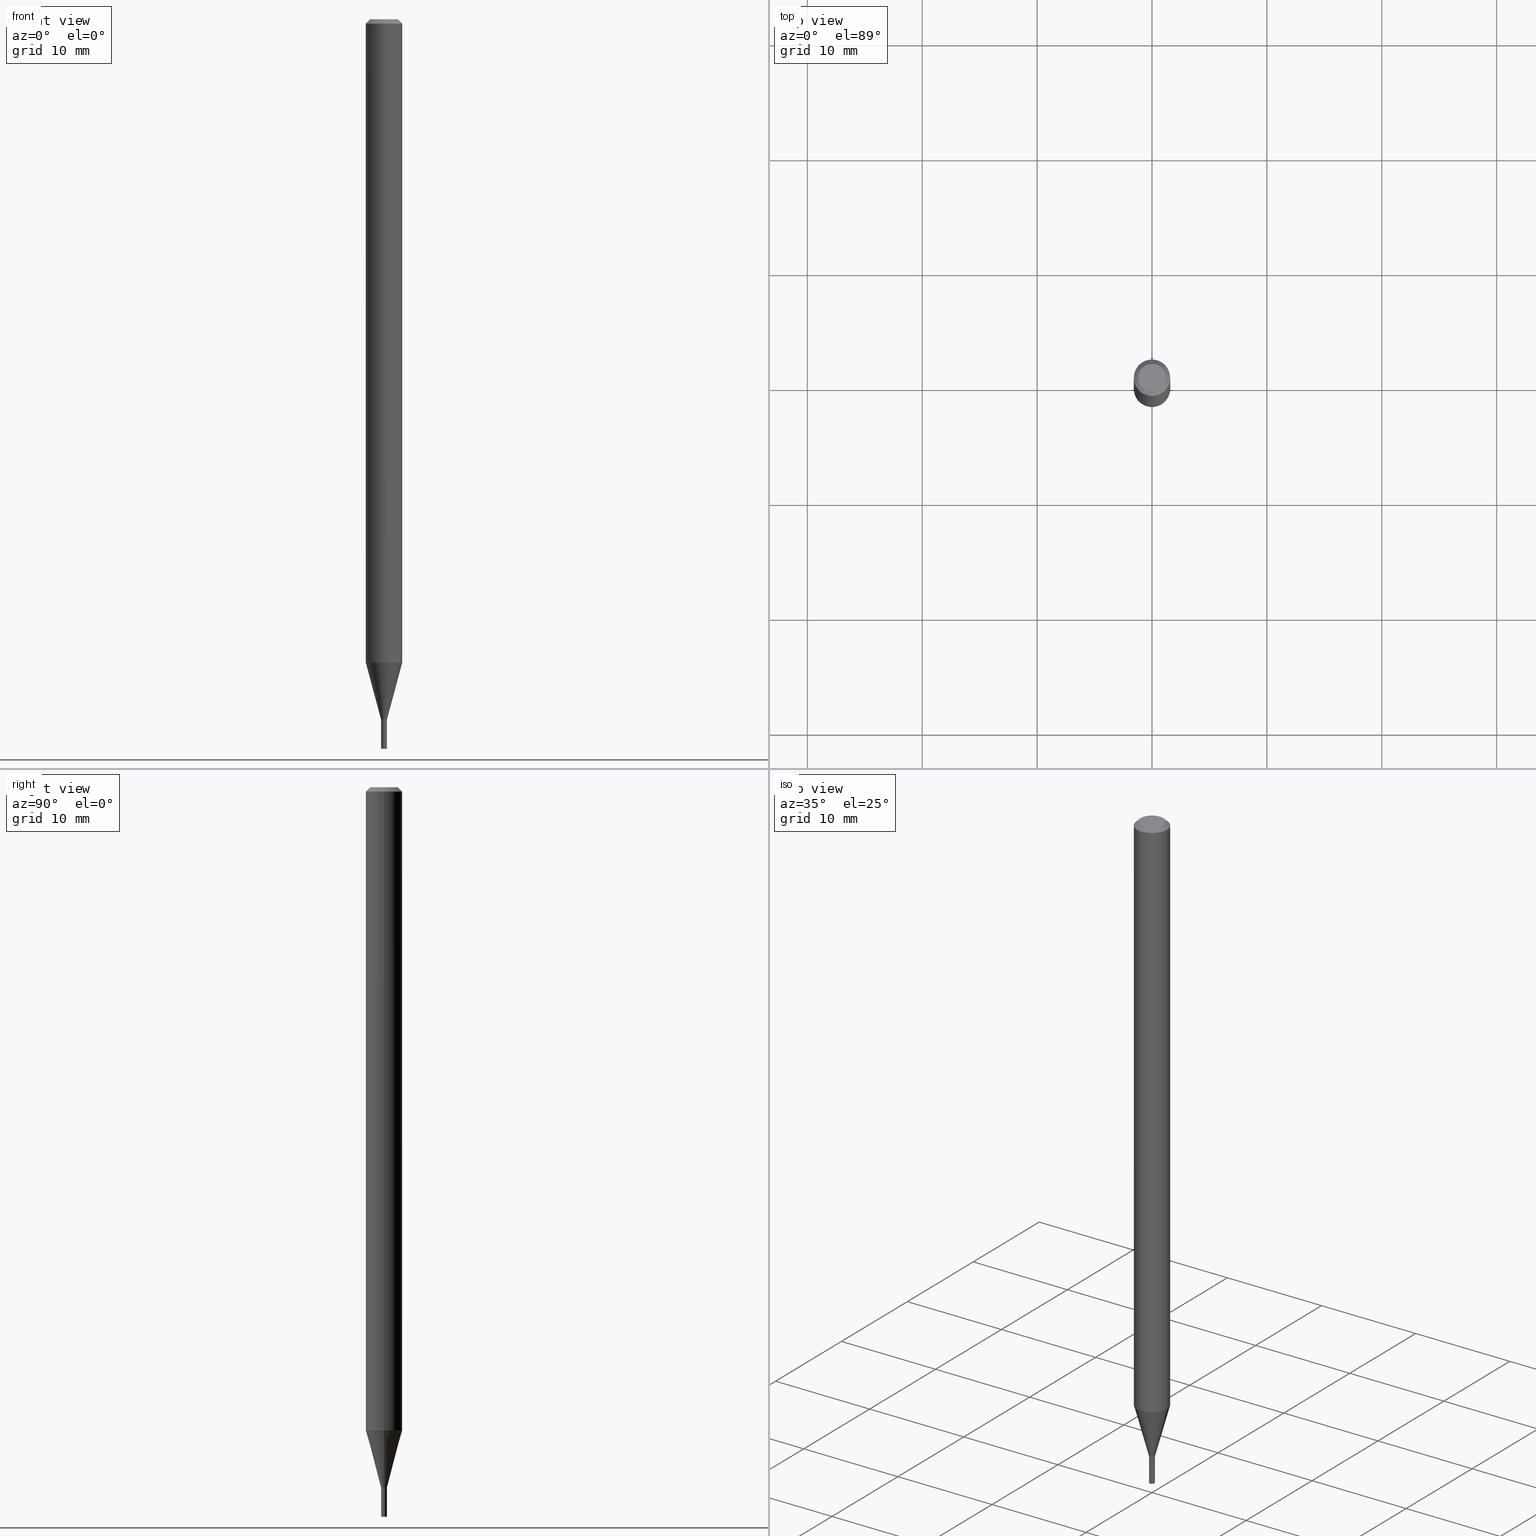
[diagram: canonical four-view strip — front | top / right | iso, engineering-drawing reading convention]
A machine part, canonical four-view strip (front | top / right | iso — engineering-drawing reading convention). The complete STEP part file that produces these views, byte-faithful:
ISO-10303-21;
HEADER;
FILE_DESCRIPTION (( 'STEP AP203' ),
    '1' );
FILE_NAME ('01229.STEP',
    '2024-03-20T00:17:53',
    ( '' ),
    ( '' ),
    'SwSTEP 2.0',
    'SolidWorks 2023',
    '' );
FILE_SCHEMA (( 'CONFIG_CONTROL_DESIGN' ));
ENDSEC;

DATA;
#1 = PRODUCT_RELATED_PRODUCT_CATEGORY ( 'detail', '', ( #329 ) ) ;
#2 = FACE_OUTER_BOUND ( 'NONE', #5, .T. ) ;
#3 = PLANE ( 'NONE',  #413 ) ;
#4 = DATE_AND_TIME ( #290, #226 ) ;
#5 = EDGE_LOOP ( 'NONE', ( #154, #197, #342, #156 ) ) ;
#6 = CARTESIAN_POINT ( 'NONE',  ( 0.000000000000000000, 0.000000000000000000, 0.000000000000000000 ) ) ;
#7 = DIRECTION ( 'NONE',  ( -2.445468806185136597E-29, 3.491481338843145583E-15, 1.000000000000000000 ) ) ;
#8 = AXIS2_PLACEMENT_3D ( 'NONE', #388, #349, #27 ) ;
#9 = PERSON_AND_ORGANIZATION ( #163, #17 ) ;
#10 = VECTOR ( 'NONE', #393, 39.37007874015748143 ) ;
#11 = ORIENTED_EDGE ( 'NONE', *, *, #153, .F. ) ;
#12 = EDGE_CURVE ( 'NONE', #301, #316, #242, .T. ) ;
#13 = DIRECTION ( 'NONE',  ( 1.000000000000000000, 0.000000000000000000, 0.000000000000000000 ) ) ;
#14 = EDGE_LOOP ( 'NONE', ( #451, #278, #128, #56 ) ) ;
#15 = LINE ( 'NONE', #270, #108 ) ;
#16 = ORIENTED_EDGE ( 'NONE', *, *, #279, .F. ) ;
#17 = ORGANIZATION ( 'UNSPECIFIED', 'UNSPECIFIED', '' ) ;
#18 = EDGE_CURVE ( 'NONE', #19, #189, #126, .T. ) ;
#19 = VERTEX_POINT ( 'NONE', #200 ) ;
#20 = DIRECTION ( 'NONE',  ( 1.000000000000000000, -6.982962677686267499E-15, 4.852736867747366768E-29 ) ) ;
#21 = SHAPE_DEFINITION_REPRESENTATION ( #24, #315 ) ;
#22 = CIRCLE ( 'NONE', #217, 0.01000000000000019623 ) ;
#23 = VECTOR ( 'NONE', #136, 39.37007874015748143 ) ;
#24 = PRODUCT_DEFINITION_SHAPE ( 'NONE', 'NONE',  #415 ) ;
#25 = DIRECTION ( 'NONE',  ( 1.000000000000000000, -6.982962677686235945E-15, 0.000000000000000000 ) ) ;
#26 = ORIENTED_EDGE ( 'NONE', *, *, #330, .F. ) ;
#27 = DIRECTION ( 'NONE',  ( -1.000000000000000000, 6.982962677686266711E-15, 0.000000000000000000 ) ) ;
#28 = EDGE_CURVE ( 'NONE', #234, #347, #15, .T. ) ;
#29 = DIRECTION ( 'NONE',  ( 0.2588190451025214611, 1.565188264969621573E-15, 0.9659258262890682012 ) ) ;
#30 = DATE_TIME_ROLE ( 'creation_date' ) ;
#31 = VERTEX_POINT ( 'NONE', #202 ) ;
#32 = LOCAL_TIME ( 20, 17, 53.00000000000000000, #233 ) ;
#33 = CARTESIAN_POINT ( 'NONE',  ( 0.01000000000000000021, -8.798532973884726663E-15, -2.500000000000000000 ) ) ;
#34 = EDGE_CURVE ( 'NONE', #301, #158, #51, .T. ) ;
#35 = APPROVAL ( #378, 'UNSPECIFIED' ) ;
#36 = DIRECTION ( 'NONE',  ( -2.445468806185136597E-29, 3.491481338843145583E-15, 1.000000000000000000 ) ) ;
#37 = CARTESIAN_POINT ( 'NONE',  ( 5.869125134844328281E-29, -8.379555213223550029E-15, -2.399999999999999911 ) ) ;
#38 = PLANE ( 'NONE',  #427 ) ;
#39 = AXIS2_PLACEMENT_3D ( 'NONE', #143, #285, #354 ) ;
#40 = CARTESIAN_POINT ( 'NONE',  ( 0.06250000000000000000, -8.131895128691275373E-15, -2.204067332602633211 ) ) ;
#41 = EDGE_LOOP ( 'NONE', ( #411, #368, #216, #104 ) ) ;
#42 = ORIENTED_EDGE ( 'NONE', *, *, #289, .T. ) ;
#43 = ADVANCED_FACE ( 'NONE', ( #374 ), #94, .F. ) ;
#44 = AXIS2_PLACEMENT_3D ( 'NONE', #366, #443, #373 ) ;
#45 = CARTESIAN_POINT ( 'NONE',  ( 5.867902400441235479E-29, -8.377809472554129315E-15, -2.399500000000000188 ) ) ;
#46 = CARTESIAN_POINT ( 'NONE',  ( -0.009499999999999999764, -8.312053653326340057E-15, -2.399999999999999911 ) ) ;
#47 = ORIENTED_EDGE ( 'NONE', *, *, #391, .F. ) ;
#48 = DIRECTION ( 'NONE',  ( 1.000000000000000000, -6.982962677686292743E-15, 0.000000000000000000 ) ) ;
#49 = ORIENTED_EDGE ( 'NONE', *, *, #80, .T. ) ;
#50 = DIRECTION ( 'NONE',  ( -2.445468806185136597E-29, 3.491481338843145583E-15, 1.000000000000000000 ) ) ;
#51 = CIRCLE ( 'NONE', #198, 0.009499999999999999764 ) ;
#52 = VECTOR ( 'NONE', #29, 39.37007874015747433 ) ;
#53 = CC_DESIGN_DATE_AND_TIME_ASSIGNMENT ( #334, #151, ( #177 ) ) ;
#54 = CARTESIAN_POINT ( 'NONE',  ( 0.000000000000000000, 0.000000000000000000, 0.000000000000000000 ) ) ;
#55 = APPROVAL_DATE_TIME ( #90, #296 ) ;
#56 = ORIENTED_EDGE ( 'NONE', *, *, #369, .F. ) ;
#57 = CARTESIAN_POINT ( 'NONE',  ( 0.01000000000000019623, -8.447639099330992613E-15, -2.399500000000000188 ) ) ;
#58 = ADVANCED_FACE ( 'NONE', ( #147 ), #118, .T. ) ;
#59 = AXIS2_PLACEMENT_3D ( 'NONE', #37, #405, #187 ) ;
#60 = CIRCLE ( 'NONE', #141, 0.01000000000000000021 ) ;
#61 = DIRECTION ( 'NONE',  ( 1.000000000000000000, -6.982962677686265922E-15, 4.876176775795935793E-29 ) ) ;
#62 = CARTESIAN_POINT ( 'NONE',  ( 5.869125134844328281E-29, -8.379555213223550029E-15, -2.399999999999999911 ) ) ;
#63 = DIRECTION ( 'NONE',  ( -2.445468806185136597E-29, 3.491481338843145583E-15, 1.000000000000000000 ) ) ;
#64 = CARTESIAN_POINT ( 'NONE',  ( 5.869125134844328281E-29, -8.379555213223550029E-15, -2.399999999999999911 ) ) ;
#65 = ORIENTED_EDGE ( 'NONE', *, *, #74, .F. ) ;
#66 = LINE ( 'NONE', #426, #23 ) ;
#67 = DIRECTION ( 'NONE',  ( 1.000000000000000000, -6.982962677686281699E-15, 0.000000000000000000 ) ) ;
#68 = ORIENTED_EDGE ( 'NONE', *, *, #293, .F. ) ;
#69 = DIRECTION ( 'NONE',  ( -0.2588190451025214611, 5.211531920934551042E-15, 0.9659258262890682012 ) ) ;
#70 = VECTOR ( 'NONE', #379, 39.37007874015748143 ) ;
#71 = CONICAL_SURFACE ( 'NONE', #185, 0.009999999999999649794, 0.2617993877991501295 ) ;
#72 = CC_DESIGN_PERSON_AND_ORGANIZATION_ASSIGNMENT ( #157, #306, ( #329 ) ) ;
#73 = CARTESIAN_POINT ( 'NONE',  ( 0.000000000000000000, 0.000000000000000000, 0.000000000000000000 ) ) ;
#74 = EDGE_CURVE ( 'NONE', #134, #31, #105, .T. ) ;
#75 = DIRECTION ( 'NONE',  ( -1.000000000000000000, 6.982962677686265922E-15, -4.876176775795935793E-29 ) ) ;
#76 = ADVANCED_FACE ( 'NONE', ( #356 ), #243, .T. ) ;
#77 = CLOSED_SHELL ( 'NONE', ( #317, #380, #164, #112 ) ) ;
#78 = CIRCLE ( 'NONE', #166, 0.06250000000000000000 ) ;
#79 = CARTESIAN_POINT ( 'NONE',  ( 0.04749999999999999362, -4.035134999187561860E-16, 9.466017379673015986E-16 ) ) ;
#80 = EDGE_CURVE ( 'NONE', #394, #365, #325, .T. ) ;
#81 = PERSON_AND_ORGANIZATION_ROLE ( 'classification_officer' ) ;
#82 = ADVANCED_FACE ( 'NONE', ( #218 ), #159, .T. ) ;
#83 = EDGE_LOOP ( 'NONE', ( #145, #444 ) ) ;
#84 = DIRECTION ( 'NONE',  ( 1.000000000000000000, -6.982962677686281699E-15, 0.000000000000000000 ) ) ;
#85 = CIRCLE ( 'NONE', #250, 0.01000000000000000021 ) ;
#86 = AXIS2_PLACEMENT_3D ( 'NONE', #73, #465, #144 ) ;
#87 = CYLINDRICAL_SURFACE ( 'NONE', #324, 0.06250000000000000000 ) ;
#88 = EDGE_CURVE ( 'NONE', #394, #316, #150, .T. ) ;
#89 = APPROVAL_ROLE ( '' ) ;
#90 = DATE_AND_TIME ( #375, #428 ) ;
#91 = PERSON_AND_ORGANIZATION ( #163, #17 ) ;
#92 = AXIS2_PLACEMENT_3D ( 'NONE', #274, #123, #464 ) ;
#93 = ORIENTED_EDGE ( 'NONE', *, *, #293, .T. ) ;
#94 = CYLINDRICAL_SURFACE ( 'NONE', #322, 0.009999999999999923880 ) ;
#95 = ORIENTED_EDGE ( 'NONE', *, *, #454, .F. ) ;
#96 = DIRECTION ( 'NONE',  ( 1.000000000000000000, -6.982962677686265922E-15, 4.876176775795935232E-29 ) ) ;
#97 = FACE_OUTER_BOUND ( 'NONE', #376, .T. ) ;
#98 = VERTEX_POINT ( 'NONE', #40 ) ;
#99 = DIRECTION ( 'NONE',  ( 0.7071067811865252573, -7.319954787623181892E-15, -0.7071067811865697772 ) ) ;
#100 = CARTESIAN_POINT ( 'NONE',  ( -0.06250000000000000000, 4.440892098500626162E-16, -3.074334431409316114E-30 ) ) ;
#101 = CARTESIAN_POINT ( 'NONE',  ( -0.01000000000000000021, -8.483075006589696615E-15, -2.500000000000000000 ) ) ;
#102 =( LENGTH_UNIT ( ) NAMED_UNIT ( * ) SI_UNIT ( $, .METRE. ) );
#103 = DIRECTION ( 'NONE',  ( -2.445468806185136597E-29, 3.491481338843145583E-15, 1.000000000000000000 ) ) ;
#104 = ORIENTED_EDGE ( 'NONE', *, *, #28, .F. ) ;
#105 = LINE ( 'NONE', #457, #313 ) ;
#106 = CC_DESIGN_DATE_AND_TIME_ASSIGNMENT ( #4, #30, ( #415 ) ) ;
#107 = COORDINATED_UNIVERSAL_TIME_OFFSET ( 5, 0, .BEHIND. ) ;
#108 = VECTOR ( 'NONE', #298, 39.37007874015748143 ) ;
#109 = APPROVAL_PERSON_ORGANIZATION ( #429, #458, #327 ) ;
#110 = PLANE ( 'NONE',  #363 ) ;
#111 = DIRECTION ( 'NONE',  ( -1.000000000000000000, 6.982962677686266711E-15, 0.000000000000000000 ) ) ;
#112 = ADVANCED_FACE ( 'NONE', ( #152 ), #3, .F. ) ;
#113 = APPLICATION_PROTOCOL_DEFINITION ( 'international standard', 'config_control_design', 1994, #230 ) ;
#114 = DIRECTION ( 'NONE',  ( 2.445468806185136597E-29, -3.491481338843145583E-15, -1.000000000000000000 ) ) ;
#115 = CARTESIAN_POINT ( 'NONE',  ( -2.314885022079666495E-44, 3.305042303429313746E-30, 9.466017379672990348E-16 ) ) ;
#116 = DIRECTION ( 'NONE',  ( -2.445468806185136597E-29, 3.491481338843145583E-15, 1.000000000000000000 ) ) ;
#117 = DIRECTION ( 'NONE',  ( -2.445468806185136597E-29, 3.491481338843145583E-15, 1.000000000000000000 ) ) ;
#118 = CONICAL_SURFACE ( 'NONE', #8, 0.06250000000000000000, 0.7853981633974168597 ) ;
#119 = CARTESIAN_POINT ( 'NONE',  ( 3.668203209277705088E-31, -5.237222008264718399E-17, -0.01499999999999999944 ) ) ;
#120 = ORIENTED_EDGE ( 'NONE', *, *, #18, .F. ) ;
#121 = CC_DESIGN_PERSON_AND_ORGANIZATION_ASSIGNMENT ( #9, #81, ( #177 ) ) ;
#122 = CALENDAR_DATE ( 2024, 19, 3 ) ;
#123 = DIRECTION ( 'NONE',  ( -2.445468806185136597E-29, 3.491481338843145583E-15, 1.000000000000000000 ) ) ;
#124 = AXIS2_PLACEMENT_3D ( 'NONE', #194, #303, #417 ) ;
#125 = CIRCLE ( 'NONE', #199, 0.01000000000000000021 ) ;
#126 = LINE ( 'NONE', #240, #70 ) ;
#127 = VERTEX_POINT ( 'NONE', #358 ) ;
#128 = ORIENTED_EDGE ( 'NONE', *, *, #155, .F. ) ;
#129 = DIRECTION ( 'NONE',  ( -2.445468806185136597E-29, 3.491481338843145583E-15, 1.000000000000000000 ) ) ;
#130 = APPLICATION_PROTOCOL_DEFINITION ( 'international standard', 'config_control_design', 1994, #351 ) ;
#131 = DIRECTION ( 'NONE',  ( 1.000000000000000000, -6.982962677686266711E-15, 0.000000000000000000 ) ) ;
#132 = DIRECTION ( 'NONE',  ( -2.445468806185136597E-29, 3.491481338843145583E-15, 1.000000000000000000 ) ) ;
#133 = DIRECTION ( 'NONE',  ( -2.445468806185136597E-29, 3.491481338843145583E-15, 1.000000000000000000 ) ) ;
#134 = VERTEX_POINT ( 'NONE', #79 ) ;
#135 = EDGE_CURVE ( 'NONE', #394, #19, #176, .T. ) ;
#136 = DIRECTION ( 'NONE',  ( -2.445468806185136877E-29, 3.491481338843145188E-15, 1.000000000000000000 ) ) ;
#137 = EDGE_LOOP ( 'NONE', ( #424, #367, #462, #384 ) ) ;
#138 = LINE ( 'NONE', #397, #52 ) ;
#139 = ORIENTED_EDGE ( 'NONE', *, *, #220, .F. ) ;
#140 = CLOSED_SHELL ( 'NONE', ( #43, #402, #82, #435, #466, #76, #209, #58, #267, #229, #203, #434 ) ) ;
#141 = AXIS2_PLACEMENT_3D ( 'NONE', #62, #257, #25 ) ;
#142 =( CONVERSION_BASED_UNIT ( 'INCH', #178 ) LENGTH_UNIT ( ) NAMED_UNIT ( #168 ) );
#143 = CARTESIAN_POINT ( 'NONE',  ( 5.869125134844327160E-29, -8.379555213223548452E-15, -2.399999999999999911 ) ) ;
#144 = DIRECTION ( 'NONE',  ( 1.000000000000000000, -6.982962677686265922E-15, 4.876176775795935793E-29 ) ) ;
#145 = ORIENTED_EDGE ( 'NONE', *, *, #391, .T. ) ;
#146 = EDGE_CURVE ( 'NONE', #408, #308, #260, .T. ) ;
#147 = FACE_OUTER_BOUND ( 'NONE', #339, .T. ) ;
#148 = CARTESIAN_POINT ( 'NONE',  ( -0.01000000000000000021, 7.105427357601002007E-17, -4.918935090254906272E-31 ) ) ;
#149 = PERSON_AND_ORGANIZATION ( #163, #17 ) ;
#150 = LINE ( 'NONE', #441, #165 ) ;
#151 = DATE_TIME_ROLE ( 'classification_date' ) ;
#152 = FACE_OUTER_BOUND ( 'NONE', #83, .T. ) ;
#153 = EDGE_CURVE ( 'NONE', #189, #316, #22, .T. ) ;
#154 = ORIENTED_EDGE ( 'NONE', *, *, #12, .F. ) ;
#155 = EDGE_CURVE ( 'NONE', #31, #347, #207, .T. ) ;
#156 = ORIENTED_EDGE ( 'NONE', *, *, #171, .F. ) ;
#157 = PERSON_AND_ORGANIZATION ( #163, #17 ) ;
#158 = VERTEX_POINT ( 'NONE', #340 ) ;
#159 = CONICAL_SURFACE ( 'NONE', #275, 0.06250000000000000000, 0.7853981633974168597 ) ;
#160 = APPROVAL_PERSON_ORGANIZATION ( #91, #296, #272 ) ;
#161 = DIRECTION ( 'NONE',  ( -2.445468806185136597E-29, 3.491481338843145583E-15, 1.000000000000000000 ) ) ;
#162 = DIRECTION ( 'NONE',  ( 0.000000000000000000, 0.000000000000000000, 1.000000000000000000 ) ) ;
#163 = PERSON ( 'UNSPECIFIED', 'UNSPECIFIED', 'UNSPECIFIED', ('UNSPECIFIED'), ('UNSPECIFIED'), ('UNSPECIFIED') ) ;
#164 = ADVANCED_FACE ( 'NONE', ( #445 ), #304, .T. ) ;
#165 = VECTOR ( 'NONE', #401, 39.37007874015748143 ) ;
#166 = AXIS2_PLACEMENT_3D ( 'NONE', #119, #232, #131 ) ;
#167 = ORIENTED_EDGE ( 'NONE', *, *, #221, .T. ) ;
#168 = DIMENSIONAL_EXPONENTS ( 1.000000000000000000, 0.000000000000000000, 0.000000000000000000, 0.000000000000000000, 0.000000000000000000, 0.000000000000000000, 0.000000000000000000 ) ;
#169 = DIRECTION ( 'NONE',  ( 1.000000000000000000, -6.982962677686281699E-15, 0.000000000000000000 ) ) ;
#170 = CARTESIAN_POINT ( 'NONE',  ( -0.06250000000000000000, -7.251370751485821088E-15, -2.204067332602633211 ) ) ;
#171 = EDGE_CURVE ( 'NONE', #316, #189, #299, .T. ) ;
#172 = ORIENTED_EDGE ( 'NONE', *, *, #345, .F. ) ;
#173 = DIRECTION ( 'NONE',  ( 1.000000000000000000, -6.982962677686235945E-15, 0.000000000000000000 ) ) ;
#174 = EDGE_CURVE ( 'NONE', #158, #189, #211, .T. ) ;
#175 = ORIENTED_EDGE ( 'NONE', *, *, #28, .T. ) ;
#176 = CIRCLE ( 'NONE', #59, 0.009999999999999649794 ) ;
#177 = SECURITY_CLASSIFICATION ( '', '', #248 ) ;
#178 = LENGTH_MEASURE_WITH_UNIT ( LENGTH_MEASURE( 0.02539999999999999897 ), #102 );
#179 = CARTESIAN_POINT ( 'NONE',  ( 0.01000000000000000021, -8.449384840000411750E-15, -2.399999999999999911 ) ) ;
#180 = PERSON_AND_ORGANIZATION_ROLE ( 'creator' ) ;
#181 = CARTESIAN_POINT ( 'NONE',  ( -0.009499999999999999764, -8.309404426152228067E-15, -2.399999999999999911 ) ) ;
#182 = CARTESIAN_POINT ( 'NONE',  ( 3.668203209277705088E-31, -5.237222008264718399E-17, -0.01499999999999999944 ) ) ;
#183 = DIRECTION ( 'NONE',  ( 1.000000000000000000, -6.982962677686285643E-15, 0.000000000000000000 ) ) ;
#184 = UNCERTAINTY_MEASURE_WITH_UNIT (LENGTH_MEASURE( 1.000000000000000082E-05 ), #142, 'distance_accuracy_value', 'NONE');
#185 = AXIS2_PLACEMENT_3D ( 'NONE', #210, #459, #183 ) ;
#186 = DIRECTION ( 'NONE',  ( 2.438088387897960049E-29, -3.491481338843145188E-15, -1.000000000000000000 ) ) ;
#187 = DIRECTION ( 'NONE',  ( 1.000000000000000000, -6.982962677686285643E-15, 0.000000000000000000 ) ) ;
#188 = EDGE_LOOP ( 'NONE', ( #271, #455 ) ) ;
#189 = VERTEX_POINT ( 'NONE', #57 ) ;
#190 = CARTESIAN_POINT ( 'NONE',  ( 5.389977908611419802E-29, -7.695459961335882126E-15, -2.204067332602633211 ) ) ;
#191 = EDGE_LOOP ( 'NONE', ( #352, #195, #318, #312 ) ) ;
#192 = CIRCLE ( 'NONE', #291, 0.06250000000000000000 ) ;
#193 = ORIENTED_EDGE ( 'NONE', *, *, #80, .F. ) ;
#194 = CARTESIAN_POINT ( 'NONE',  ( 3.668203209277705088E-31, -5.237222008264718399E-17, -0.01499999999999999944 ) ) ;
#195 = ORIENTED_EDGE ( 'NONE', *, *, #220, .T. ) ;
#196 = DIRECTION ( 'NONE',  ( -2.445468806185136597E-29, 3.491481338843145583E-15, 1.000000000000000000 ) ) ;
#197 = ORIENTED_EDGE ( 'NONE', *, *, #34, .T. ) ;
#198 = AXIS2_PLACEMENT_3D ( 'NONE', #344, #423, #84 ) ;
#199 = AXIS2_PLACEMENT_3D ( 'NONE', #64, #212, #173 ) ;
#200 = CARTESIAN_POINT ( 'NONE',  ( 0.009999999999999649794, -8.449384840000410172E-15, -2.399999999999999911 ) ) ;
#201 = ORIENTED_EDGE ( 'NONE', *, *, #146, .F. ) ;
#202 = CARTESIAN_POINT ( 'NONE',  ( 0.06250000000000000000, -4.888073874380388472E-16, -0.01499999999999999944 ) ) ;
#203 = ADVANCED_FACE ( 'NONE', ( #2 ), #398, .T. ) ;
#204 = EDGE_LOOP ( 'NONE', ( #193, #409, #268, #139 ) ) ;
#205 = COORDINATED_UNIVERSAL_TIME_OFFSET ( 5, 0, .BEHIND. ) ;
#206 = CARTESIAN_POINT ( 'NONE',  ( 5.869125134844327160E-29, -8.379555213223548452E-15, -2.399999999999999911 ) ) ;
#207 = CIRCLE ( 'NONE', #124, 0.06250000000000000000 ) ;
#208 = DIRECTION ( 'NONE',  ( -2.445468806185136877E-29, 3.491481338843145188E-15, 1.000000000000000000 ) ) ;
#209 = ADVANCED_FACE ( 'NONE', ( #262 ), #294, .T. ) ;
#210 = CARTESIAN_POINT ( 'NONE',  ( 5.869125134844328281E-29, -8.379555213223550029E-15, -2.399999999999999911 ) ) ;
#211 = LINE ( 'NONE', #254, #10 ) ;
#212 = DIRECTION ( 'NONE',  ( -2.445468806185136597E-29, 3.491481338843145583E-15, 1.000000000000000000 ) ) ;
#213 = APPROVAL_STATUS ( 'not_yet_approved' ) ;
#214 = ORIENTED_EDGE ( 'NONE', *, *, #34, .F. ) ;
#215 = DIRECTION ( 'NONE',  ( -2.438088387897960049E-29, 3.491481338843145188E-15, 1.000000000000000000 ) ) ;
#216 = ORIENTED_EDGE ( 'NONE', *, *, #155, .T. ) ;
#217 = AXIS2_PLACEMENT_3D ( 'NONE', #45, #129, #48 ) ;
#218 = FACE_OUTER_BOUND ( 'NONE', #41, .T. ) ;
#219 = PERSON_AND_ORGANIZATION_ROLE ( 'design_supplier' ) ;
#220 = EDGE_CURVE ( 'NONE', #365, #98, #192, .T. ) ;
#221 = EDGE_CURVE ( 'NONE', #308, #408, #85, .T. ) ;
#222 = DIRECTION ( 'NONE',  ( -2.445468806185136597E-29, 3.491481338843145583E-15, 1.000000000000000000 ) ) ;
#223 = DIRECTION ( 'NONE',  ( 1.000000000000000000, -6.982962677686266711E-15, 4.876176775795935793E-29 ) ) ;
#224 = CALENDAR_DATE ( 2024, 19, 3 ) ;
#225 = CIRCLE ( 'NONE', #236, 0.04749999999999999362 ) ;
#226 = LOCAL_TIME ( 20, 17, 53.00000000000000000, #256 ) ;
#227 = CARTESIAN_POINT ( 'NONE',  ( 6.113672015462842613E-29, -8.728703347107864943E-15, -2.500000000000000000 ) ) ;
#228 = MANIFOLD_SOLID_BREP ( 'Body-Move/Copy2[1]', #77 ) ;
#229 = ADVANCED_FACE ( 'NONE', ( #404 ), #110, .F. ) ;
#230 = APPLICATION_CONTEXT ( 'configuration controlled 3d designs of mechanical parts and assemblies' ) ;
#231 = DIRECTION ( 'NONE',  ( 1.000000000000000000, -6.982962677686265922E-15, 4.876176775795935232E-29 ) ) ;
#232 = DIRECTION ( 'NONE',  ( -2.445468806185136597E-29, 3.491481338843145583E-15, 1.000000000000000000 ) ) ;
#233 = COORDINATED_UNIVERSAL_TIME_OFFSET ( 5, 0, .BEHIND. ) ;
#234 = VERTEX_POINT ( 'NONE', #442 ) ;
#235 = AXIS2_PLACEMENT_3D ( 'NONE', #264, #297, #223 ) ;
#236 = AXIS2_PLACEMENT_3D ( 'NONE', #115, #7, #407 ) ;
#237 = EDGE_LOOP ( 'NONE', ( #258, #416, #11, #420 ) ) ;
#238 = CC_DESIGN_PERSON_AND_ORGANIZATION_ASSIGNMENT ( #286, #432, ( #282 ) ) ;
#239 = DATE_AND_TIME ( #122, #453 ) ;
#240 = CARTESIAN_POINT ( 'NONE',  ( 0.009999999999999923880, -6.982962677686212723E-17, 4.876176775795898308E-31 ) ) ;
#241 = ORIENTED_EDGE ( 'NONE', *, *, #338, .F. ) ;
#242 = LINE ( 'NONE', #46, #371 ) ;
#243 = CONICAL_SURFACE ( 'NONE', #335, 0.009999999999999649794, 0.2617993877991501295 ) ;
#244 =( GEOMETRIC_REPRESENTATION_CONTEXT ( 3 ) GLOBAL_UNCERTAINTY_ASSIGNED_CONTEXT ( ( #184 ) ) GLOBAL_UNIT_ASSIGNED_CONTEXT ( ( #142, #259, #425 ) ) REPRESENTATION_CONTEXT ( 'NONE', 'WORKASPACE' ) );
#245 = DIRECTION ( 'NONE',  ( 1.000000000000000000, -6.982962677686262766E-15, 0.000000000000000000 ) ) ;
#246 = ORIENTED_EDGE ( 'NONE', *, *, #221, .F. ) ;
#247 = LINE ( 'NONE', #148, #406 ) ;
#248 = SECURITY_CLASSIFICATION_LEVEL ( 'unclassified' ) ;
#249 = PLANE ( 'NONE',  #292 ) ;
#250 = AXIS2_PLACEMENT_3D ( 'NONE', #227, #36, #266 ) ;
#251 = AXIS2_PLACEMENT_3D ( 'NONE', #421, #133, #245 ) ;
#252 = ORIENTED_EDGE ( 'NONE', *, *, #146, .T. ) ;
#253 = LINE ( 'NONE', #430, #265 ) ;
#254 = CARTESIAN_POINT ( 'NONE',  ( 0.009499999999999999764, -8.445893358661568743E-15, -2.399999999999999911 ) ) ;
#255 = DIRECTION ( 'NONE',  ( -2.445468806185136877E-29, 3.491481338843145188E-15, 1.000000000000000000 ) ) ;
#256 = COORDINATED_UNIVERSAL_TIME_OFFSET ( 5, 0, .BEHIND. ) ;
#257 = DIRECTION ( 'NONE',  ( -2.445468806185136597E-29, 3.491481338843145583E-15, 1.000000000000000000 ) ) ;
#258 = ORIENTED_EDGE ( 'NONE', *, *, #323, .T. ) ;
#259 =( NAMED_UNIT ( * ) PLANE_ANGLE_UNIT ( ) SI_UNIT ( $, .RADIAN. ) );
#260 = CIRCLE ( 'NONE', #44, 0.01000000000000000021 ) ;
#261 = CC_DESIGN_APPROVAL ( #458, ( #282 ) ) ;
#262 = FACE_OUTER_BOUND ( 'NONE', #191, .T. ) ;
#263 = DIRECTION ( 'NONE',  ( 2.438088387897960049E-29, -3.491481338843145188E-15, -1.000000000000000000 ) ) ;
#264 = CARTESIAN_POINT ( 'NONE',  ( 0.000000000000000000, 0.000000000000000000, 0.000000000000000000 ) ) ;
#265 = VECTOR ( 'NONE', #208, 39.37007874015748143 ) ;
#266 = DIRECTION ( 'NONE',  ( 1.000000000000000000, -6.982962677686235945E-15, 0.000000000000000000 ) ) ;
#267 = ADVANCED_FACE ( 'NONE', ( #295 ), #38, .F. ) ;
#268 = ORIENTED_EDGE ( 'NONE', *, *, #345, .T. ) ;
#269 = AXIS2_PLACEMENT_3D ( 'NONE', #6, #116, #231 ) ;
#270 = CARTESIAN_POINT ( 'NONE',  ( -0.06250000000000000000, 3.840629472727444916E-16, -0.01499999999999999944 ) ) ;
#271 = ORIENTED_EDGE ( 'NONE', *, *, #279, .T. ) ;
#272 = APPROVAL_ROLE ( '' ) ;
#273 = ORIENTED_EDGE ( 'NONE', *, *, #135, .F. ) ;
#274 = CARTESIAN_POINT ( 'NONE',  ( 5.867902400441235479E-29, -8.377809472554129315E-15, -2.399500000000000188 ) ) ;
#275 = AXIS2_PLACEMENT_3D ( 'NONE', #182, #114, #111 ) ;
#276 = APPROVAL_PERSON_ORGANIZATION ( #311, #35, #89 ) ;
#277 = ORIENTED_EDGE ( 'NONE', *, *, #171, .T. ) ;
#278 = ORIENTED_EDGE ( 'NONE', *, *, #382, .T. ) ;
#279 = EDGE_CURVE ( 'NONE', #234, #134, #225, .T. ) ;
#280 = ORIENTED_EDGE ( 'NONE', *, *, #359, .T. ) ;
#281 = LINE ( 'NONE', #100, #346 ) ;
#282 = PRODUCT_DEFINITION_FORMATION_WITH_SPECIFIED_SOURCE ( 'ANY', '', #329, .NOT_KNOWN. ) ;
#283 = EDGE_LOOP ( 'NONE', ( #280, #49, #95, #172 ) ) ;
#284 = DIRECTION ( 'NONE',  ( 1.000000000000000000, -6.982962677686285643E-15, 0.000000000000000000 ) ) ;
#285 = DIRECTION ( 'NONE',  ( -2.445468806185136597E-29, 3.491481338843145583E-15, 1.000000000000000000 ) ) ;
#286 = PERSON_AND_ORGANIZATION ( #163, #17 ) ;
#287 = CARTESIAN_POINT ( 'NONE',  ( 5.869125134844328281E-29, -8.379555213223550029E-15, -2.399999999999999911 ) ) ;
#288 = CARTESIAN_POINT ( 'NONE',  ( 6.194428952736783458E-29, -8.613054816532157721E-15, -2.500000000000000000 ) ) ;
#289 = EDGE_CURVE ( 'NONE', #347, #31, #78, .T. ) ;
#290 = CALENDAR_DATE ( 2024, 19, 3 ) ;
#291 = AXIS2_PLACEMENT_3D ( 'NONE', #190, #117, #357 ) ;
#292 = AXIS2_PLACEMENT_3D ( 'NONE', #288, #215, #61 ) ;
#293 = EDGE_CURVE ( 'NONE', #408, #412, #253, .T. ) ;
#294 = CYLINDRICAL_SURFACE ( 'NONE', #235, 0.06250000000000000000 ) ;
#295 = FACE_OUTER_BOUND ( 'NONE', #188, .T. ) ;
#296 = APPROVAL ( #410, 'UNSPECIFIED' ) ;
#297 = DIRECTION ( 'NONE',  ( -2.445468806185136597E-29, 3.491481338843145583E-15, 1.000000000000000000 ) ) ;
#298 = DIRECTION ( 'NONE',  ( -0.7071067811865252573, 2.468850131082023558E-15, -0.7071067811865697772 ) ) ;
#299 = CIRCLE ( 'NONE', #92, 0.01000000000000019623 ) ;
#300 = DIRECTION ( 'NONE',  ( 1.000000000000000000, -6.982962677686265922E-15, 4.876176775795935793E-29 ) ) ;
#301 = VERTEX_POINT ( 'NONE', #181 ) ;
#302 = DIRECTION ( 'NONE',  ( -0.7071067811869512498, 7.493145998871813553E-15, 0.7071067811861437846 ) ) ;
#303 = DIRECTION ( 'NONE',  ( -2.445468806185136597E-29, 3.491481338843145583E-15, 1.000000000000000000 ) ) ;
#304 = CYLINDRICAL_SURFACE ( 'NONE', #449, 0.01000000000000000021 ) ;
#305 = CARTESIAN_POINT ( 'NONE',  ( 5.869125134844328281E-29, -8.379555213223550029E-15, -2.399999999999999911 ) ) ;
#306 = PERSON_AND_ORGANIZATION_ROLE ( 'design_owner' ) ;
#307 = EDGE_LOOP ( 'NONE', ( #26, #167, #93, #241 ) ) ;
#308 = VERTEX_POINT ( 'NONE', #101 ) ;
#309 = AXIS2_PLACEMENT_3D ( 'NONE', #310, #162, #13 ) ;
#310 = CARTESIAN_POINT ( 'NONE',  ( 0.000000000000000000, 0.000000000000000000, 0.000000000000000000 ) ) ;
#311 = PERSON_AND_ORGANIZATION ( #163, #17 ) ;
#312 = ORIENTED_EDGE ( 'NONE', *, *, #289, .F. ) ;
#313 = VECTOR ( 'NONE', #99, 39.37007874015748143 ) ;
#314 = CC_DESIGN_SECURITY_CLASSIFICATION ( #177, ( #282 ) ) ;
#315 = ADVANCED_BREP_SHAPE_REPRESENTATION ( '01229', ( #228, #385, #309 ), #244 ) ;
#316 = VERTEX_POINT ( 'NONE', #461 ) ;
#317 = ADVANCED_FACE ( 'NONE', ( #456 ), #328, .T. ) ;
#318 = ORIENTED_EDGE ( 'NONE', *, *, #369, .T. ) ;
#319 = EDGE_LOOP ( 'NONE', ( #252, #433, #47, #68 ) ) ;
#320 = CARTESIAN_POINT ( 'NONE',  ( -0.009999999999999649794, -7.779935845566682095E-15, -2.399999999999999911 ) ) ;
#321 = APPROVAL_DATE_TIME ( #350, #458 ) ;
#322 = AXIS2_PLACEMENT_3D ( 'NONE', #386, #222, #96 ) ;
#323 = EDGE_CURVE ( 'NONE', #158, #301, #450, .T. ) ;
#324 = AXIS2_PLACEMENT_3D ( 'NONE', #370, #161, #377 ) ;
#325 = LINE ( 'NONE', #463, #355 ) ;
#326 = FACE_OUTER_BOUND ( 'NONE', #137, .T. ) ;
#327 = APPROVAL_ROLE ( '' ) ;
#328 = CYLINDRICAL_SURFACE ( 'NONE', #86, 0.01000000000000000021 ) ;
#329 = PRODUCT ( '01229', '01229', '', ( #341 ) ) ;
#330 = EDGE_CURVE ( 'NONE', #308, #127, #247, .T. ) ;
#331 = CARTESIAN_POINT ( 'NONE',  ( 5.869125134844327160E-29, -8.379555213223548452E-15, -2.399999999999999911 ) ) ;
#332 = CIRCLE ( 'NONE', #390, 0.009999999999999649794 ) ;
#333 = CC_DESIGN_PERSON_AND_ORGANIZATION_ASSIGNMENT ( #149, #180, ( #415 ) ) ;
#334 = DATE_AND_TIME ( #362, #32 ) ;
#335 = AXIS2_PLACEMENT_3D ( 'NONE', #287, #395, #284 ) ;
#336 = CC_DESIGN_APPROVAL ( #35, ( #177 ) ) ;
#337 = EDGE_LOOP ( 'NONE', ( #431, #214 ) ) ;
#338 = EDGE_CURVE ( 'NONE', #127, #412, #60, .T. ) ;
#339 = EDGE_LOOP ( 'NONE', ( #65, #16, #175, #42 ) ) ;
#340 = CARTESIAN_POINT ( 'NONE',  ( 0.009499999999999999764, -8.445893358661568743E-15, -2.399999999999999911 ) ) ;
#341 = MECHANICAL_CONTEXT ( 'NONE', #230, 'mechanical' ) ;
#342 = ORIENTED_EDGE ( 'NONE', *, *, #174, .T. ) ;
#343 = CIRCLE ( 'NONE', #437, 0.04749999999999999362 ) ;
#344 = CARTESIAN_POINT ( 'NONE',  ( 5.869125134844327160E-29, -8.379555213223548452E-15, -2.399999999999999911 ) ) ;
#345 = EDGE_CURVE ( 'NONE', #19, #98, #138, .T. ) ;
#346 = VECTOR ( 'NONE', #255, 39.37007874015748143 ) ;
#347 = VERTEX_POINT ( 'NONE', #439 ) ;
#348 = DIRECTION ( 'NONE',  ( -2.445468806185136877E-29, 3.491481338843145188E-15, 1.000000000000000000 ) ) ;
#349 = DIRECTION ( 'NONE',  ( 2.445468806185136597E-29, -3.491481338843145583E-15, -1.000000000000000000 ) ) ;
#350 = DATE_AND_TIME ( #224, #400 ) ;
#351 = APPLICATION_CONTEXT ( 'configuration controlled 3d designs of mechanical parts and assemblies' ) ;
#352 = ORIENTED_EDGE ( 'NONE', *, *, #382, .F. ) ;
#353 = DESIGN_CONTEXT ( 'detailed design', #351, 'design' ) ;
#354 = DIRECTION ( 'NONE',  ( 1.000000000000000000, -6.982962677686281699E-15, 0.000000000000000000 ) ) ;
#355 = VECTOR ( 'NONE', #69, 39.37007874015747433 ) ;
#356 = FACE_OUTER_BOUND ( 'NONE', #204, .T. ) ;
#357 = DIRECTION ( 'NONE',  ( 1.000000000000000000, -6.982962677686262766E-15, 0.000000000000000000 ) ) ;
#358 = CARTESIAN_POINT ( 'NONE',  ( -0.01000000000000000021, -8.483075006589696615E-15, -2.399999999999999911 ) ) ;
#359 = EDGE_CURVE ( 'NONE', #19, #394, #332, .T. ) ;
#360 = CYLINDRICAL_SURFACE ( 'NONE', #269, 0.009999999999999923880 ) ;
#361 = DIRECTION ( 'NONE',  ( -2.438088387897960049E-29, 3.491481338843145188E-15, 1.000000000000000000 ) ) ;
#362 = CALENDAR_DATE ( 2024, 19, 3 ) ;
#363 = AXIS2_PLACEMENT_3D ( 'NONE', #436, #361, #300 ) ;
#364 = CONICAL_SURFACE ( 'NONE', #39, 0.009499999999999999764, 0.7853981633980192667 ) ;
#365 = VERTEX_POINT ( 'NONE', #170 ) ;
#366 = CARTESIAN_POINT ( 'NONE',  ( 6.113672015462842613E-29, -8.728703347107864943E-15, -2.500000000000000000 ) ) ;
#367 = ORIENTED_EDGE ( 'NONE', *, *, #359, .F. ) ;
#368 = ORIENTED_EDGE ( 'NONE', *, *, #74, .T. ) ;
#369 = EDGE_CURVE ( 'NONE', #98, #31, #66, .T. ) ;
#370 = CARTESIAN_POINT ( 'NONE',  ( 0.000000000000000000, 0.000000000000000000, 0.000000000000000000 ) ) ;
#371 = VECTOR ( 'NONE', #302, 39.37007874015748143 ) ;
#372 = CIRCLE ( 'NONE', #251, 0.06250000000000000000 ) ;
#373 = DIRECTION ( 'NONE',  ( 1.000000000000000000, -6.982962677686235945E-15, 0.000000000000000000 ) ) ;
#374 = FACE_OUTER_BOUND ( 'NONE', #422, .T. ) ;
#375 = CALENDAR_DATE ( 2024, 19, 3 ) ;
#376 = EDGE_LOOP ( 'NONE', ( #201, #246 ) ) ;
#377 = DIRECTION ( 'NONE',  ( 1.000000000000000000, -6.982962677686266711E-15, 4.876176775795935793E-29 ) ) ;
#378 = APPROVAL_STATUS ( 'not_yet_approved' ) ;
#379 = DIRECTION ( 'NONE',  ( -2.445468806185136877E-29, 3.491481338843145188E-15, 1.000000000000000000 ) ) ;
#380 = ADVANCED_FACE ( 'NONE', ( #97 ), #249, .F. ) ;
#381 = CC_DESIGN_APPROVAL ( #296, ( #415 ) ) ;
#382 = EDGE_CURVE ( 'NONE', #365, #347, #281, .T. ) ;
#383 = FACE_OUTER_BOUND ( 'NONE', #283, .T. ) ;
#384 = ORIENTED_EDGE ( 'NONE', *, *, #153, .T. ) ;
#385 = MANIFOLD_SOLID_BREP ( 'Body-Move/Copy2[2]', #140 ) ;
#386 = CARTESIAN_POINT ( 'NONE',  ( 0.000000000000000000, 0.000000000000000000, 0.000000000000000000 ) ) ;
#387 = DIRECTION ( 'NONE',  ( 1.000000000000000000, -6.982962677686285643E-15, 0.000000000000000000 ) ) ;
#388 = CARTESIAN_POINT ( 'NONE',  ( 3.668203209277705088E-31, -5.237222008264718399E-17, -0.01499999999999999944 ) ) ;
#389 = AXIS2_PLACEMENT_3D ( 'NONE', #206, #63, #169 ) ;
#390 = AXIS2_PLACEMENT_3D ( 'NONE', #305, #196, #387 ) ;
#391 = EDGE_CURVE ( 'NONE', #412, #127, #125, .T. ) ;
#392 = ORIENTED_EDGE ( 'NONE', *, *, #88, .T. ) ;
#393 = DIRECTION ( 'NONE',  ( 0.7071067811869512498, -2.468850131086485749E-15, 0.7071067811861437846 ) ) ;
#394 = VERTEX_POINT ( 'NONE', #320 ) ;
#395 = DIRECTION ( 'NONE',  ( -2.445468806185136597E-29, 3.491481338843145583E-15, 1.000000000000000000 ) ) ;
#396 = CC_DESIGN_PERSON_AND_ORGANIZATION_ASSIGNMENT ( #399, #219, ( #282 ) ) ;
#397 = CARTESIAN_POINT ( 'NONE',  ( 0.009999999999999649794, -8.449384840000410172E-15, -2.399999999999999911 ) ) ;
#398 = CONICAL_SURFACE ( 'NONE', #389, 0.009499999999999999764, 0.7853981633980192667 ) ;
#399 = PERSON_AND_ORGANIZATION ( #163, #17 ) ;
#400 = LOCAL_TIME ( 20, 17, 53.00000000000000000, #107 ) ;
#401 = DIRECTION ( 'NONE',  ( -2.445468806185136877E-29, 3.491481338843145188E-15, 1.000000000000000000 ) ) ;
#402 = ADVANCED_FACE ( 'NONE', ( #460 ), #364, .T. ) ;
#403 = CARTESIAN_POINT ( 'NONE',  ( 6.982962677692135343E-17, 0.009999999999991621494, -2.399999999999999911 ) ) ;
#404 = FACE_OUTER_BOUND ( 'NONE', #337, .T. ) ;
#405 = DIRECTION ( 'NONE',  ( -2.445468806185136597E-29, 3.491481338843145583E-15, 1.000000000000000000 ) ) ;
#406 = VECTOR ( 'NONE', #348, 39.37007874015748143 ) ;
#407 = DIRECTION ( 'NONE',  ( 1.000000000000000000, -6.982962677686267499E-15, 4.852736867747366768E-29 ) ) ;
#408 = VERTEX_POINT ( 'NONE', #33 ) ;
#409 = ORIENTED_EDGE ( 'NONE', *, *, #135, .T. ) ;
#410 = APPROVAL_STATUS ( 'not_yet_approved' ) ;
#411 = ORIENTED_EDGE ( 'NONE', *, *, #446, .F. ) ;
#412 = VERTEX_POINT ( 'NONE', #179 ) ;
#413 = AXIS2_PLACEMENT_3D ( 'NONE', #403, #263, #75 ) ;
#414 = AXIS2_PLACEMENT_3D ( 'NONE', #331, #103, #67 ) ;
#415 = PRODUCT_DEFINITION ( 'UNKNOWN', '', #282, #353 ) ;
#416 = ORIENTED_EDGE ( 'NONE', *, *, #12, .T. ) ;
#417 = DIRECTION ( 'NONE',  ( 1.000000000000000000, -6.982962677686266711E-15, 0.000000000000000000 ) ) ;
#418 = COORDINATED_UNIVERSAL_TIME_OFFSET ( 5, 0, .BEHIND. ) ;
#419 = CARTESIAN_POINT ( 'NONE',  ( -2.314885022079666495E-44, 3.305042303429313746E-30, 9.466017379672990348E-16 ) ) ;
#420 = ORIENTED_EDGE ( 'NONE', *, *, #174, .F. ) ;
#421 = CARTESIAN_POINT ( 'NONE',  ( 5.389977908611419802E-29, -7.695459961335882126E-15, -2.204067332602633211 ) ) ;
#422 = EDGE_LOOP ( 'NONE', ( #273, #392, #277, #120 ) ) ;
#423 = DIRECTION ( 'NONE',  ( -2.445468806185136597E-29, 3.491481338843145583E-15, 1.000000000000000000 ) ) ;
#424 = ORIENTED_EDGE ( 'NONE', *, *, #88, .F. ) ;
#425 =( NAMED_UNIT ( * ) SI_UNIT ( $, .STERADIAN. ) SOLID_ANGLE_UNIT ( ) );
#426 = CARTESIAN_POINT ( 'NONE',  ( 0.06250000000000000000, -4.364351673553916694E-16, 3.047610484872459871E-30 ) ) ;
#427 = AXIS2_PLACEMENT_3D ( 'NONE', #440, #186, #438 ) ;
#428 = LOCAL_TIME ( 20, 17, 53.00000000000000000, #418 ) ;
#429 = PERSON_AND_ORGANIZATION ( #163, #17 ) ;
#430 = CARTESIAN_POINT ( 'NONE',  ( 0.01000000000000000021, -6.982962677686265724E-17, 4.876176775795935968E-31 ) ) ;
#431 = ORIENTED_EDGE ( 'NONE', *, *, #323, .F. ) ;
#432 = PERSON_AND_ORGANIZATION_ROLE ( 'creator' ) ;
#433 = ORIENTED_EDGE ( 'NONE', *, *, #330, .T. ) ;
#434 = ADVANCED_FACE ( 'NONE', ( #326 ), #360, .F. ) ;
#435 = ADVANCED_FACE ( 'NONE', ( #448 ), #87, .T. ) ;
#436 = CARTESIAN_POINT ( 'NONE',  ( 5.869125134844328281E-29, -8.379555213223550029E-15, -2.399999999999999911 ) ) ;
#437 = AXIS2_PLACEMENT_3D ( 'NONE', #419, #50, #20 ) ;
#438 = DIRECTION ( 'NONE',  ( -1.000000000000000000, 6.982962677686265922E-15, -4.876176775795935793E-29 ) ) ;
#439 = CARTESIAN_POINT ( 'NONE',  ( -0.06250000000000000000, -3.429826880859202578E-15, -0.01499999999999999944 ) ) ;
#440 = CARTESIAN_POINT ( 'NONE',  ( 3.316907271900976096E-16, 0.04749999999999999362, 3.074555053886001210E-16 ) ) ;
#441 = CARTESIAN_POINT ( 'NONE',  ( -0.009999999999999923880, 7.105427357600947772E-17, -4.918935090254868612E-31 ) ) ;
#442 = CARTESIAN_POINT ( 'NONE',  ( -0.04749999999999999362, 3.578768372314227269E-16, 9.466017379672966683E-16 ) ) ;
#443 = DIRECTION ( 'NONE',  ( -2.445468806185136597E-29, 3.491481338843145583E-15, 1.000000000000000000 ) ) ;
#444 = ORIENTED_EDGE ( 'NONE', *, *, #338, .T. ) ;
#445 = FACE_OUTER_BOUND ( 'NONE', #307, .T. ) ;
#446 = EDGE_CURVE ( 'NONE', #134, #234, #343, .T. ) ;
#447 = DIRECTION ( 'NONE',  ( 1.000000000000000000, -6.982962677686265922E-15, 4.876176775795935793E-29 ) ) ;
#448 = FACE_OUTER_BOUND ( 'NONE', #14, .T. ) ;
#449 = AXIS2_PLACEMENT_3D ( 'NONE', #54, #132, #447 ) ;
#450 = CIRCLE ( 'NONE', #414, 0.009499999999999999764 ) ;
#451 = ORIENTED_EDGE ( 'NONE', *, *, #454, .T. ) ;
#452 = APPROVAL_DATE_TIME ( #239, #35 ) ;
#453 = LOCAL_TIME ( 20, 17, 53.00000000000000000, #205 ) ;
#454 = EDGE_CURVE ( 'NONE', #98, #365, #372, .T. ) ;
#455 = ORIENTED_EDGE ( 'NONE', *, *, #446, .T. ) ;
#456 = FACE_OUTER_BOUND ( 'NONE', #319, .T. ) ;
#457 = CARTESIAN_POINT ( 'NONE',  ( 0.06250000000000000000, -4.811533449433679005E-16, -0.01499999999999999944 ) ) ;
#458 = APPROVAL ( #213, 'UNSPECIFIED' ) ;
#459 = DIRECTION ( 'NONE',  ( -2.445468806185136597E-29, 3.491481338843145583E-15, 1.000000000000000000 ) ) ;
#460 = FACE_OUTER_BOUND ( 'NONE', #237, .T. ) ;
#461 = CARTESIAN_POINT ( 'NONE',  ( -0.01000000000000019623, -8.306755198978117655E-15, -2.399500000000000188 ) ) ;
#462 = ORIENTED_EDGE ( 'NONE', *, *, #18, .T. ) ;
#463 = CARTESIAN_POINT ( 'NONE',  ( -0.009999999999999649794, -8.308500939647543103E-15, -2.399999999999999911 ) ) ;
#464 = DIRECTION ( 'NONE',  ( 1.000000000000000000, -6.982962677686292743E-15, 0.000000000000000000 ) ) ;
#465 = DIRECTION ( 'NONE',  ( -2.445468806185136597E-29, 3.491481338843145583E-15, 1.000000000000000000 ) ) ;
#466 = ADVANCED_FACE ( 'NONE', ( #383 ), #71, .T. ) ;
ENDSEC;
END-ISO-10303-21;
